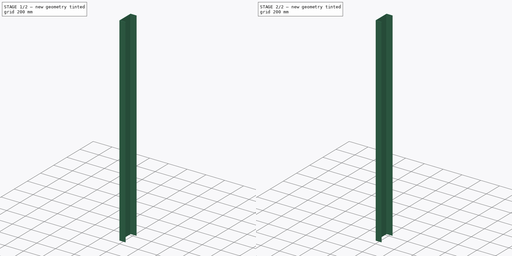
[diagram: build sequence overview — one tinted view per stage of 2, left to right]
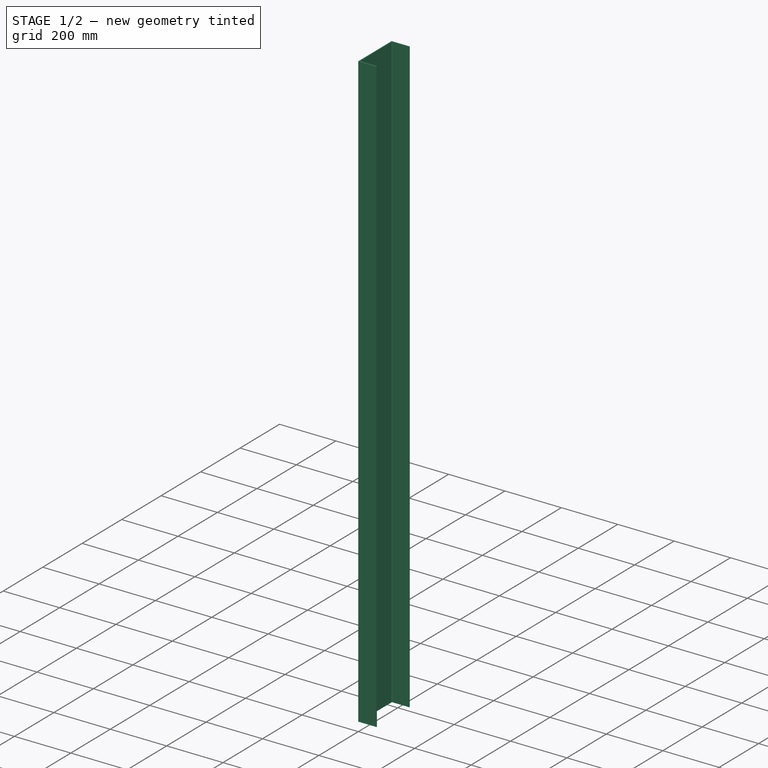
[diagram: stage 1 of 2 — iso view after this stage's code; geometry added in this stage tinted green]
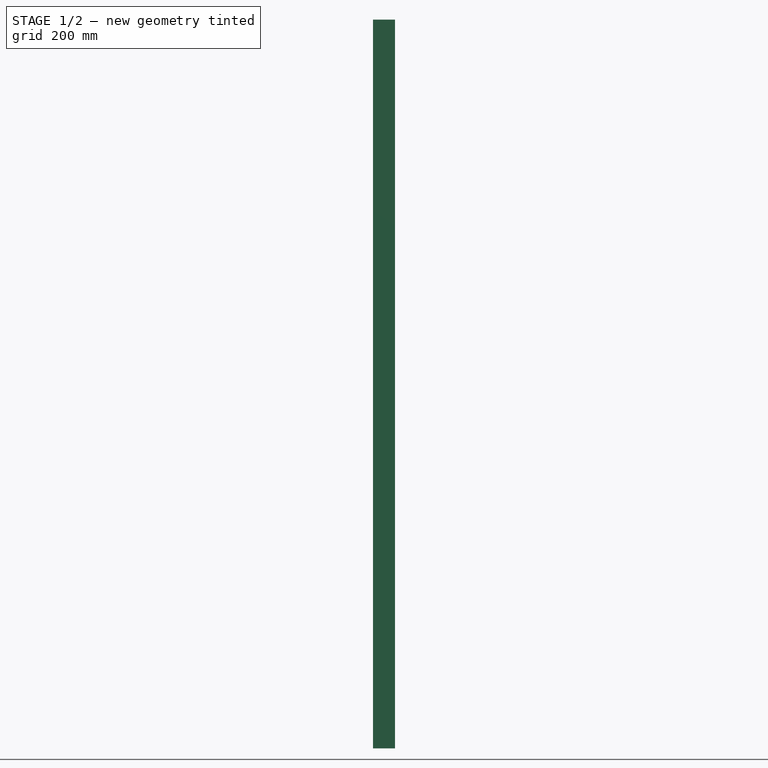
[diagram: stage 1 of 2 — front view after this stage's code; geometry added in this stage tinted green]
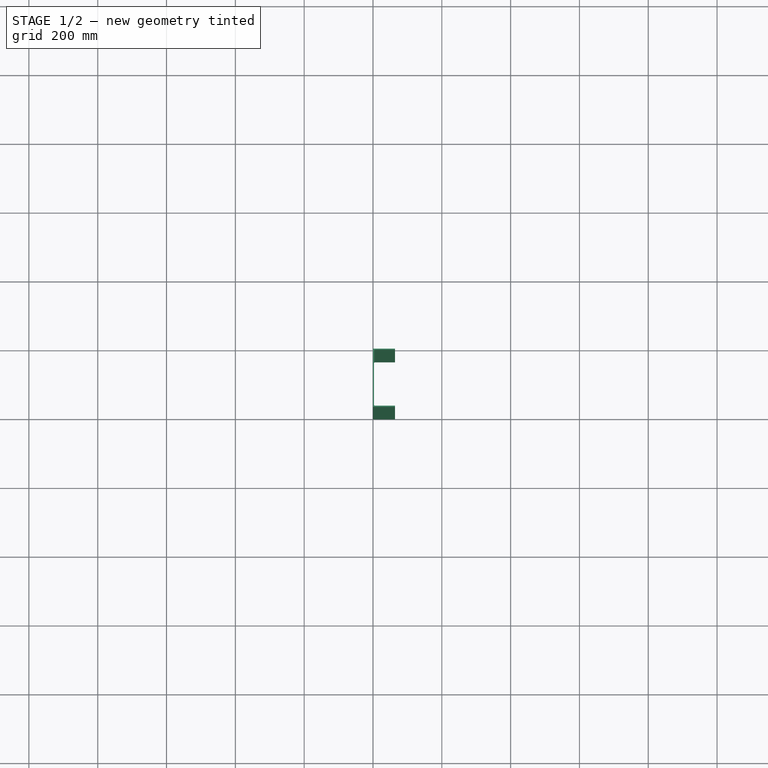
[diagram: stage 1 of 2 — top view after this stage's code; geometry added in this stage tinted green]
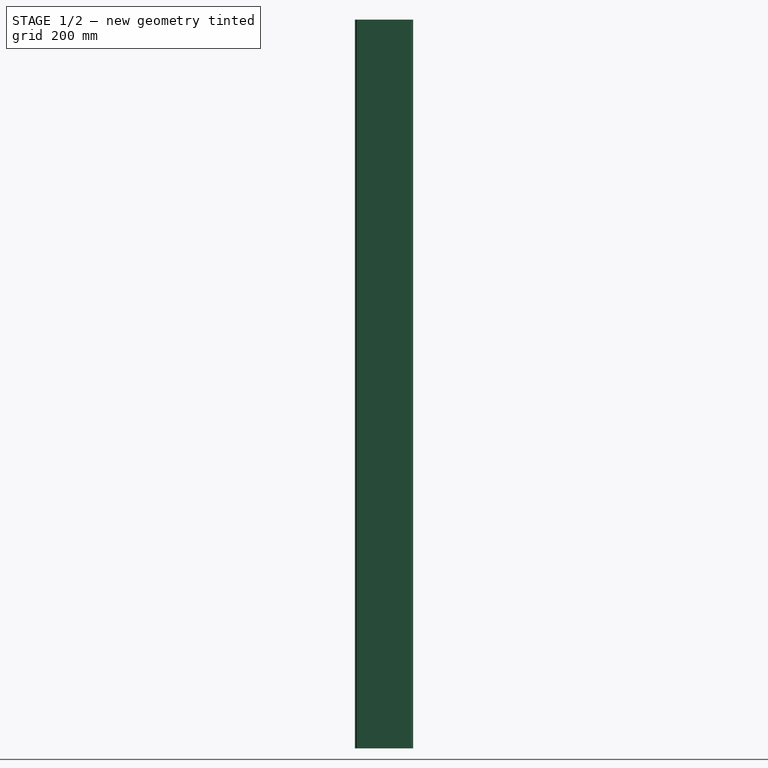
[diagram: stage 1 of 2 — right view after this stage's code; geometry added in this stage tinted green]
FCSTD DOCUMENT  (FreeCAD 0.18R4 (GitTag))
Label: back-member_bottom
License: All rights reserved
LicenseURL: http://en.wikipedia.org/wiki/All_rights_reserved
objects: PartDesign::Fillet×2, Sketcher::SketchObject×1, PartDesign::Pad×1, PartDesign::Body×1
note: 6 computed .brp shape members not serialized (recipe doc carries the construction recipe); baked Part::Feature solids carry a one-line shape summary decoded from their .brp

FEATURE [Sketcher::SketchObject] Sketch
  MapMode = 5
  Support = -> [XY_Plane]
  sketch-geometry (8):
    g0: LineSegment StartX=64 StartY=169 StartZ=0 EndX=0 EndY=169 EndZ=0
    g1: LineSegment StartX=0 StartY=169 StartZ=0 EndX=0 EndY=0 EndZ=0
    g2: LineSegment StartX=0 StartY=0 StartZ=0 EndX=64 EndY=0 EndZ=0
    g3: LineSegment StartX=64 StartY=0 StartZ=0 EndX=64 EndY=3 EndZ=0
    g4: LineSegment StartX=64 StartY=166 StartZ=0 EndX=3 EndY=166 EndZ=0
    g5: LineSegment StartX=3 StartY=166 StartZ=0 EndX=3 EndY=3 EndZ=0
    g6: LineSegment StartX=3 StartY=3 StartZ=0 EndX=64 EndY=3 EndZ=0
    g7: LineSegment StartX=64 StartY=166 StartZ=0 EndX=64 EndY=169 EndZ=0
  constraints (22):
    c: Coincident(g0,g1)
    c: Coincident(g1,g2)
    c: Coincident(g2,g3)
    c: Coincident(g7,g0)
    c: Horizontal(g0)
    c: Horizontal(g2)
    c: Vertical(g1)
    c: Vertical(g3)
    c: Coincident(g4,g5)
    c: Coincident(g5,g6)
    c: Horizontal(g4)
    c: Horizontal(g6)
    c: Vertical(g5)
    c: Tangent(g3,g7)
    c: Coincident(g4,g7)
    c: Coincident(g6,g3)
    c: DistanceX(g0,g4) = 3
    c: DistanceY(g7,g7) = 3
    c: DistanceY(g3,g3) = 3
    c: DistanceY(g1,g1) = 169
    c: DistanceX(g2,g2) = 64
    c: Coincident(g1,g-1)
FEATURE [PartDesign::Pad] Pad
  Length = 2118
  Length2 = 100
  Midplane = true
  Profile = -> Sketch
  Refine = true
  Type = 0
FEATURE [PartDesign::Fillet] Fillet
  Base = -> Pad [Edge17,Edge20]
  BaseFeature = -> Pad
  Radius = 3
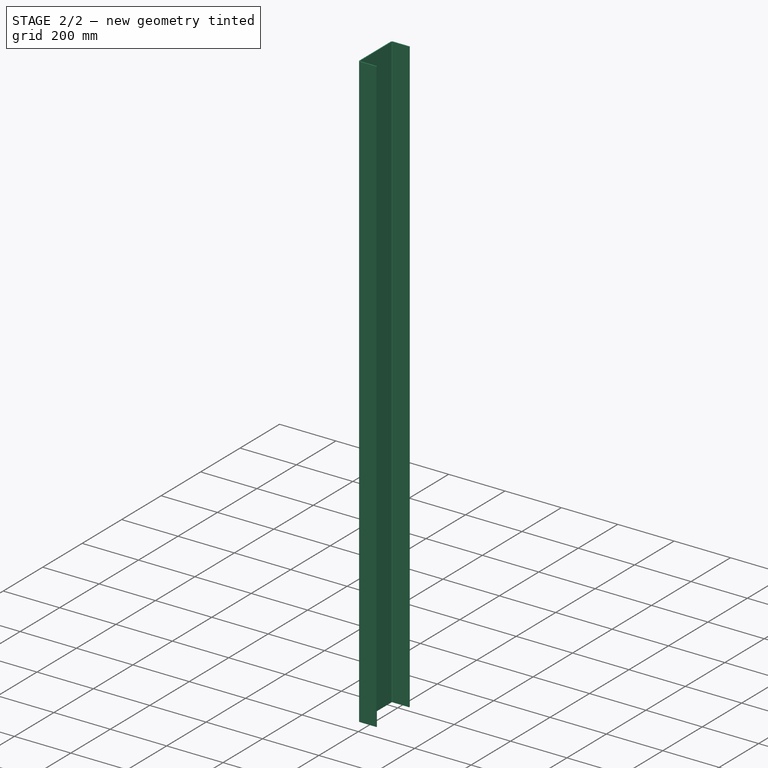
[diagram: stage 2 of 2 — iso view after this stage's code; geometry added in this stage tinted green]
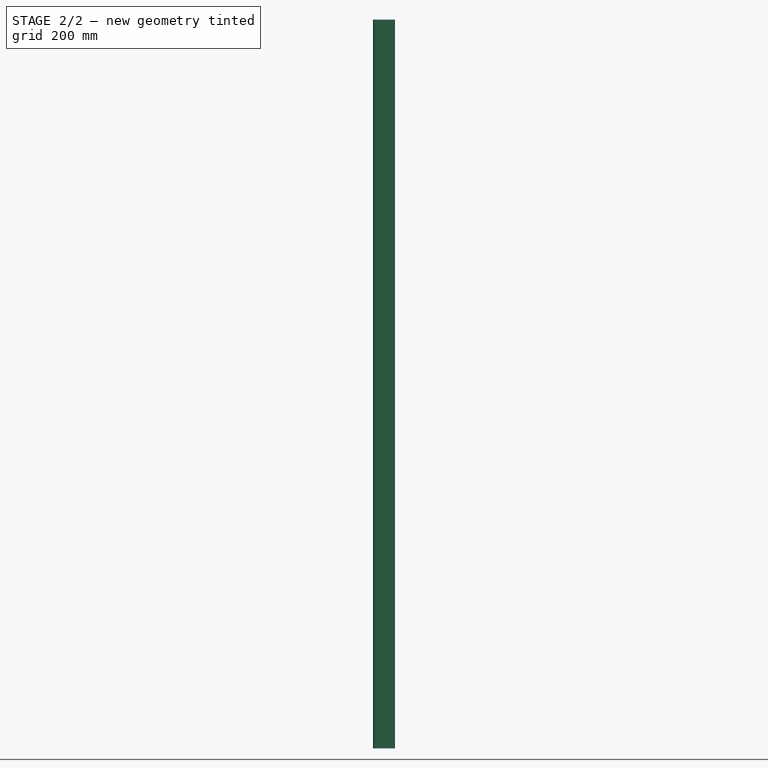
[diagram: stage 2 of 2 — front view after this stage's code; geometry added in this stage tinted green]
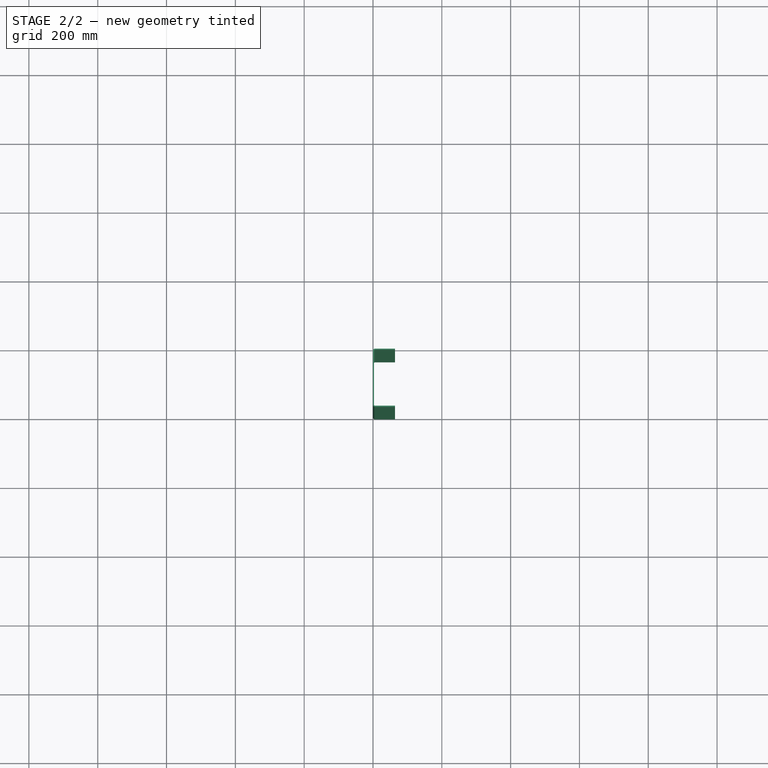
[diagram: stage 2 of 2 — top view after this stage's code; geometry added in this stage tinted green]
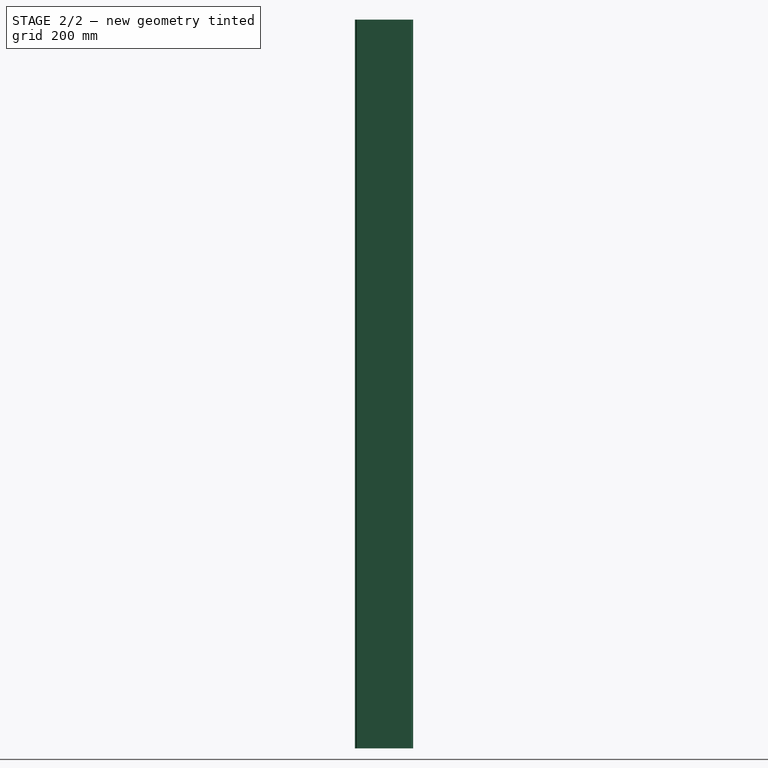
[diagram: stage 2 of 2 — right view after this stage's code; geometry added in this stage tinted green]
FEATURE [PartDesign::Fillet] Fillet001
  Base = -> Fillet [Edge28,Edge26]
  BaseFeature = -> Fillet
  Radius = 6
FEATURE [PartDesign::Body] Body
  Group = -> [Sketch,Pad,Fillet,Fillet001]
  Origin = -> Origin
  Tip = -> Fillet001
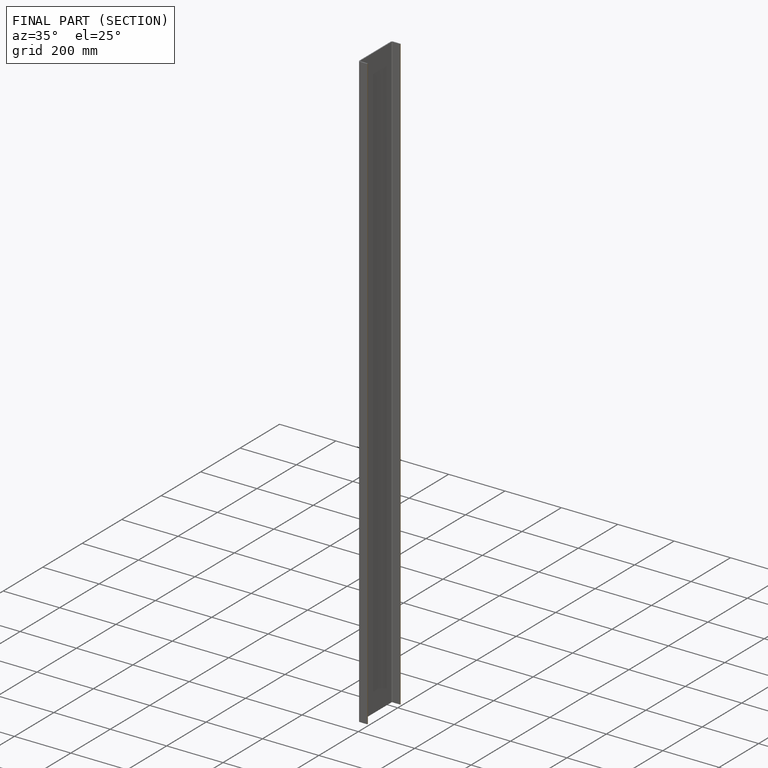
[diagram: finished part — half-section view (interior)]
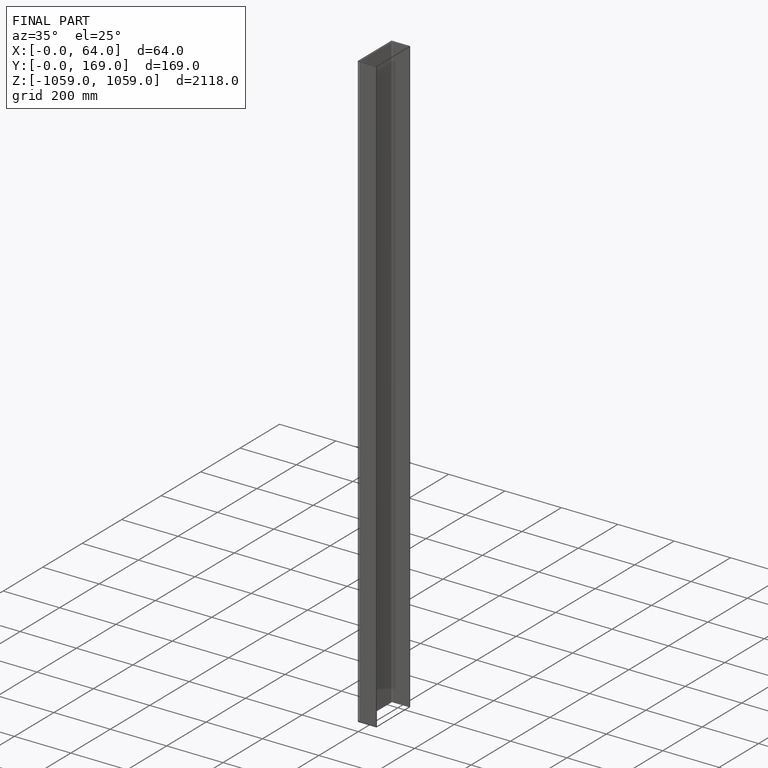
[diagram: finished part — iso view with bounding-box wireframe]
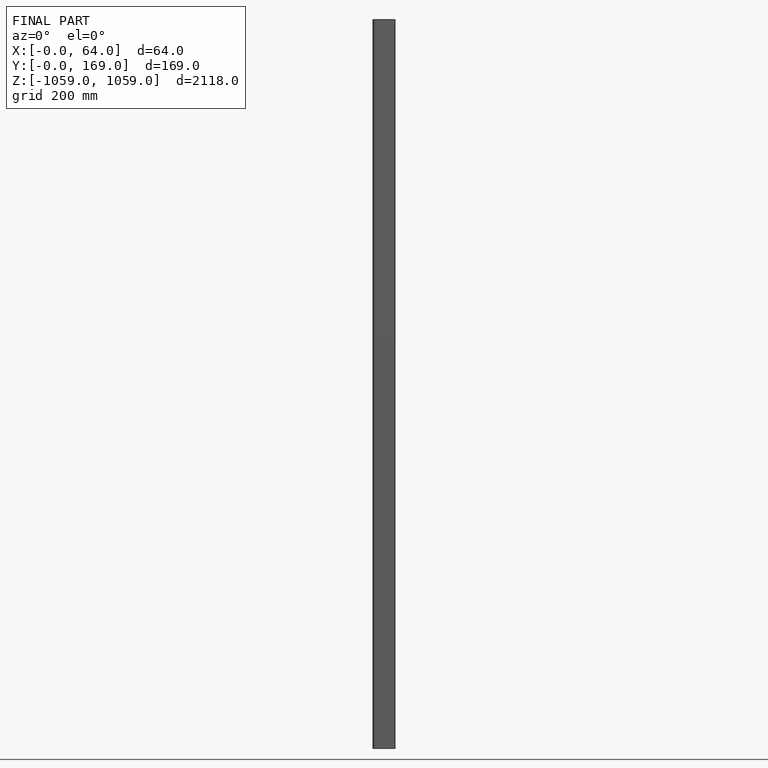
[diagram: finished part — front view with bounding-box wireframe]
